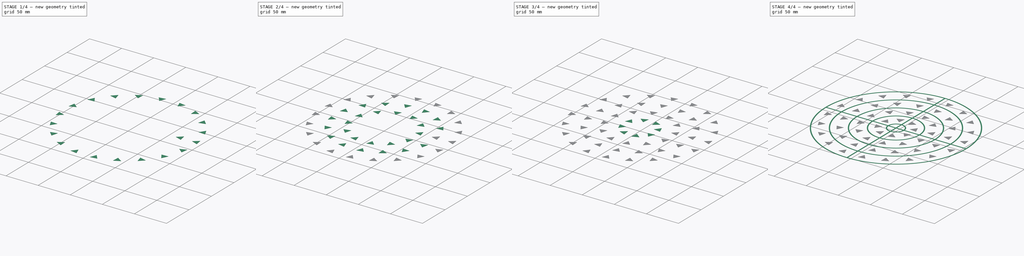
[diagram: build sequence overview — one tinted view per stage of 4, left to right]
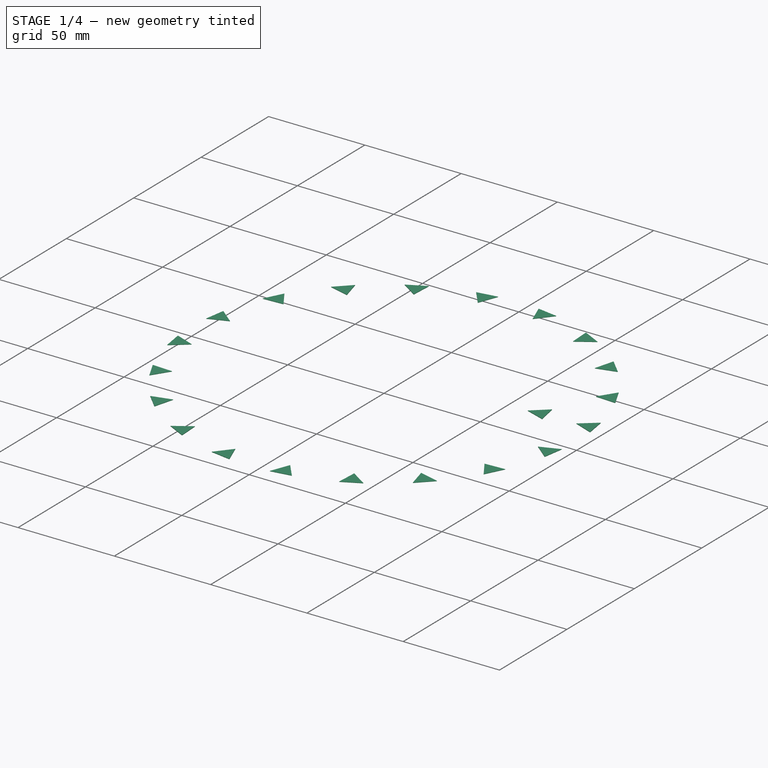
[diagram: stage 1 of 4 — iso view after this stage's code; geometry added in this stage tinted green]
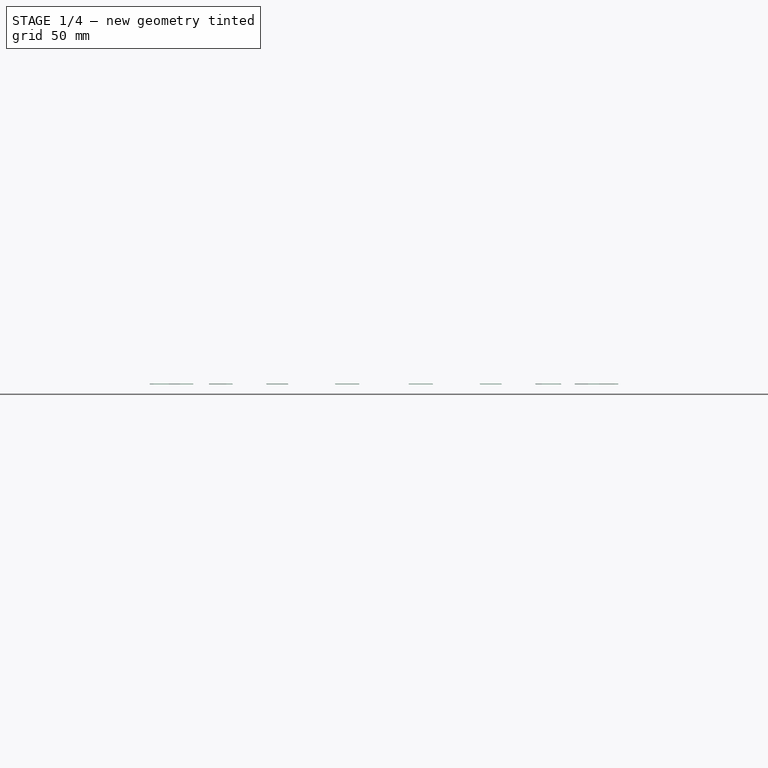
[diagram: stage 1 of 4 — front view after this stage's code; geometry added in this stage tinted green]
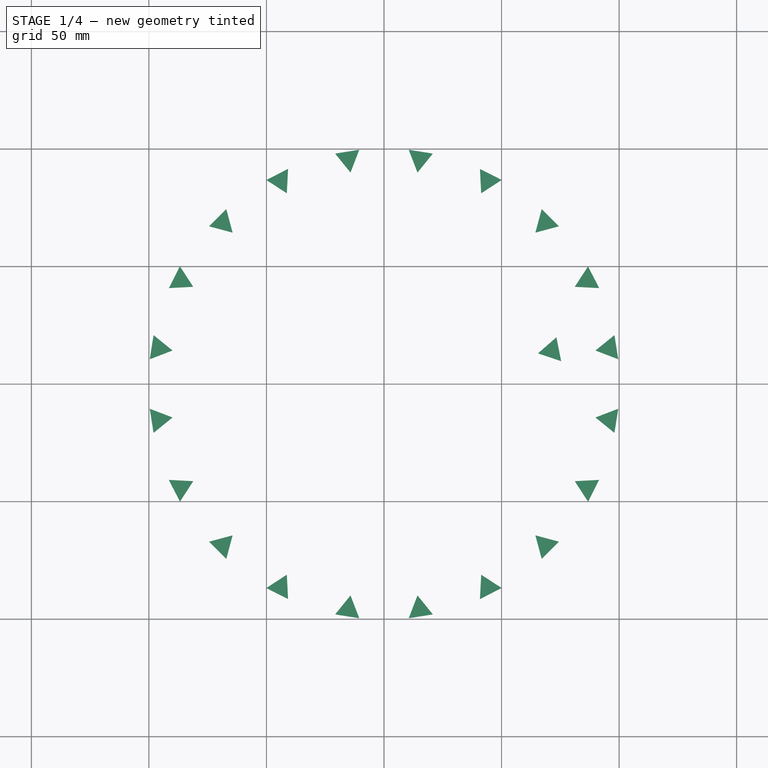
[diagram: stage 1 of 4 — top view after this stage's code; geometry added in this stage tinted green]
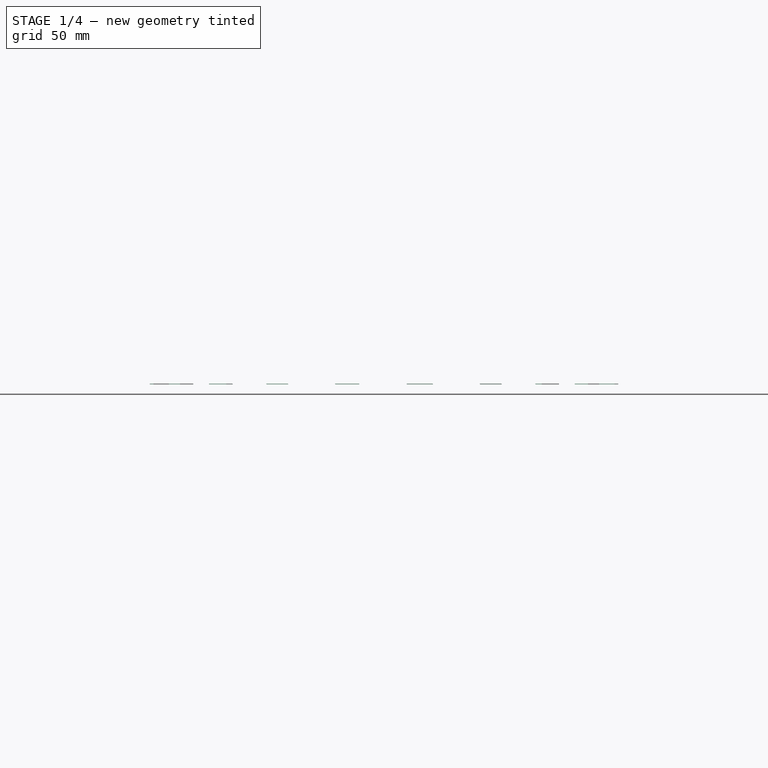
[diagram: stage 1 of 4 — right view after this stage's code; geometry added in this stage tinted green]
FCSTD DOCUMENT  (FreeCAD 0.21R33694 (Git))
Label: UltimateDeltaTestPattern
License: All rights reserved
LicenseURL: http://en.wikipedia.org/wiki/All_rights_reserved
objects: Sketcher::SketchObject×7, PartDesign::Pad×6, PartDesign::Body×5, PartDesign::ShapeBinder×4, Part::FeaturePython×4, Spreadsheet::Sheet×1, Part::Compound×1
note: 29 computed .brp shape members not serialized (recipe doc carries the construction recipe); baked Part::Feature solids carry a one-line shape summary decoded from their .brp

FEATURE [PartDesign::Body] Body002
  Group = -> [ShapeBinder001,Sketch004,Pad003]
  Origin = -> Origin002
  Tip = -> Pad003
FEATURE [PartDesign::ShapeBinder] ShapeBinder002
  Support = -> [Sketch]
  TraceSupport = false
FEATURE [Sketcher::SketchObject] Sketch005
  ExternalGeometry = -> [ShapeBinder002]
  FullyConstrained = true
  MapMode = 5
  Support = -> [XY_Plane003]
  sketch-geometry (10):
    g0: LineSegment StartX=-14.2026 StartY=71.4012 StartZ=0 EndX=14.2026 EndY=71.4012 EndZ=0
    g1: LineSegment StartX=14.2026 StartY=71.4012 StartZ=0 EndX=40.4455 EndY=60.531 EndZ=0
    g2: LineSegment StartX=40.4455 StartY=60.531 StartZ=0 EndX=60.531 EndY=40.4455 EndZ=0
    g3: LineSegment StartX=60.531 StartY=40.4455 StartZ=0 EndX=71.4012 EndY=14.2026 EndZ=0
    g4: LineSegment StartX=71.4012 StartY=14.2026 StartZ=0 EndX=71.4012 EndY=-14.2026 EndZ=0
    g5: Circle CenterX=71.4012 CenterY=14.2026 CenterZ=0 NormalX=0 NormalY=0 NormalZ=1 AngleXU=0 Radius=6
    g6: LineSegment StartX=73.3298 StartY=19.8842 StartZ=0 EndX=65.5165 EndY=13.032 EndZ=0
    g7: LineSegment StartX=65.5165 StartY=13.032 StartZ=0 EndX=75.3572 EndY=9.69154 EndZ=0
    g8: LineSegment StartX=75.3572 StartY=9.69154 StartZ=0 EndX=73.3298 EndY=19.8842 EndZ=0
    g9: LineSegment StartX=0 StartY=0 StartZ=0 EndX=71.4012 EndY=14.2026 EndZ=0
  constraints (29):
    c: Horizontal(g0)
    c: Coincident(g0,g1)
    c: Coincident(g1,g2)
    c: Coincident(g2,g3)
    c: Coincident(g3,g4)
    c: Vertical(g4)
    c: Equal(g4,g3)
    c: Equal(g3,g2)
    c: Equal(g2,g1)
    c: Equal(g1,g0)
    c: Coincident(g5,g3)
    c: PointOnObject(g0,g-3)
    c: PointOnObject(g1,g-3)
    c: PointOnObject(g2,g-3)
    c: PointOnObject(g3,g-3)
    c: PointOnObject(g4,g-3)
    c: Equal(g-4,g5)
    c: PointOnObject(g4,g-3)
    c: PointOnObject(g6,g5)
    c: PointOnObject(g6,g5)
    c: Coincident(g6,g7)
    c: PointOnObject(g7,g5)
    c: Coincident(g7,g8)
    c: Coincident(g8,g6)
    c: Equal(g7,g6)
    c: Equal(g6,g8)
    c: Coincident(g9,g-4)
    c: Coincident(g9,g3)
    c: PointOnObject(g6,g9)
FEATURE [PartDesign::Pad] Pad004
  Direction = (0,0,1)
  Length = 0.24
  Length2 = 10
  Profile = -> Sketch005
  ReferenceAxis = -> Sketch005 [N_Axis]
  Type = 0
  expr: Length = <<Spreadsheet>>.Thickness
FEATURE [PartDesign::Body] Body003
  Group = -> [ShapeBinder002,Sketch005,Pad004]
  Origin = -> Origin003
  Tip = -> Pad004
FEATURE [PartDesign::ShapeBinder] ShapeBinder003
  Support = -> [Sketch]
  TraceSupport = false
FEATURE [Sketcher::SketchObject] Sketch006
  ExternalGeometry = -> [ShapeBinder003]
  FullyConstrained = true
  MapMode = 5
  Support = -> [XY_Plane004]
  sketch-geometry (11):
    g0: LineSegment StartX=-15.1846 StartY=95.8716 StartZ=0 EndX=15.1846 EndY=95.8716 EndZ=0
    g1: LineSegment StartX=15.1846 StartY=95.8716 StartZ=0 EndX=44.0673 EndY=86.487 EndZ=0
    g2: LineSegment StartX=44.0673 StartY=86.487 StartZ=0 EndX=68.6365 EndY=68.6365 EndZ=0
    g3: LineSegment StartX=68.6365 StartY=68.6365 StartZ=0 EndX=86.487 EndY=44.0673 EndZ=0
    g4: LineSegment StartX=86.487 StartY=44.0673 StartZ=0 EndX=95.8716 EndY=15.1846 EndZ=0
    g5: LineSegment StartX=95.8716 StartY=15.1846 StartZ=0 EndX=95.8716 EndY=-15.1846 EndZ=0
    g6: Circle CenterX=95.8716 CenterY=15.1846 CenterZ=0 NormalX=0 NormalY=0 NormalZ=1 AngleXU=0 Radius=6
    g7: LineSegment StartX=0 StartY=0 StartZ=0 EndX=95.8716 EndY=15.1846 EndZ=0
    g8: LineSegment StartX=98.0218 StartY=20.7861 StartZ=0 EndX=89.9455 EndY=14.246 EndZ=0
    g9: LineSegment StartX=89.9455 StartY=14.246 StartZ=0 EndX=99.6475 EndY=10.5217 EndZ=0
    g10: LineSegment StartX=99.6475 StartY=10.5217 StartZ=0 EndX=98.0218 EndY=20.7861 EndZ=0
  constraints (32):
    c: Horizontal(g0)
    c: Coincident(g0,g1)
    c: Coincident(g1,g2)
    c: Coincident(g2,g3)
    c: Coincident(g3,g4)
    c: Coincident(g4,g5)
    c: Vertical(g5)
    c: Equal(g0,g1)
    c: Equal(g1,g2)
    c: Equal(g2,g3)
    c: Equal(g3,g4)
    c: Equal(g4,g5)
    c: Coincident(g6,g4)
    c: PointOnObject(g0,g-3)
    c: PointOnObject(g1,g-3)
    c: PointOnObject(g2,g-3)
    c: PointOnObject(g3,g-3)
    c: PointOnObject(g4,g-3)
    c: PointOnObject(g5,g-3)
    c: PointOnObject(g5,g-3)
    c: Equal(g-4,g6)
    c: Coincident(g7,g-4)
    c: Coincident(g7,g6)
    c: PointOnObject(g8,g6)
    c: PointOnObject(g8,g6)
    c: Coincident(g8,g9)
    c: PointOnObject(g9,g6)
    c: Coincident(g9,g10)
    c: Coincident(g10,g8)
    c: Equal(g8,g9)
    c: Equal(g9,g10)
    c: PointOnObject(g8,g7)
FEATURE [PartDesign::Pad] Pad005
  Direction = (0,0,1)
  Length = 0.24
  Length2 = 10
  Profile = -> Sketch006
  ReferenceAxis = -> Sketch006 [N_Axis]
  Type = 0
  expr: Length = <<Spreadsheet>>.Thickness
FEATURE [Part::FeaturePython] Array003  # Draft array (typed FeaturePython)
  AlwaysSyncPlacement = false
  Angle = 360
  ArrayType = 1
  Axis = (0,0,1)
  Base = -> Body004
  Center = (0,0,0)
  Count = 20
  ExpandArray = false
  Fuse = false
  IntervalAxis = (0,0,0)
  IntervalX = (50,0,0)
  IntervalY = (0,50,0)
  IntervalZ = (0,0,50)
  NumberCircles = 3
  NumberPolar = 20
  NumberX = 2
  NumberY = 2
  NumberZ = 1
  PlacementList = 20 placements: [(0,0,0),(0,0,0),(0,0,0),(0,0,0),(0,0,0),(0,0,0),(0,0,0),(0,0,0),(0,0,0),(0,0,0),(0,0,0),(0,0,0),(0,0,0),(0,0,0),(0,0,0),(0,0,0),(0,0,0),(0,0,0),(0,0,0),(0,0,0)]
  RadialDistance = 50
  ScaleList = (20) [(1,1,1),(1,1,1),(1,1,1),(1,1,1),(1,1,1),(1,1,1),(1,1,1),(1,1,1),(1,1,1),(1,1,1),(1,1,1),(1,1,1),(1,1,1),(1,1,1),(1,1,1),(1,1,1),(1,1,1),(1,1,1),(1,1,1),(1,1,1)]
  Symmetry = 1
  TangentialDistance = 25
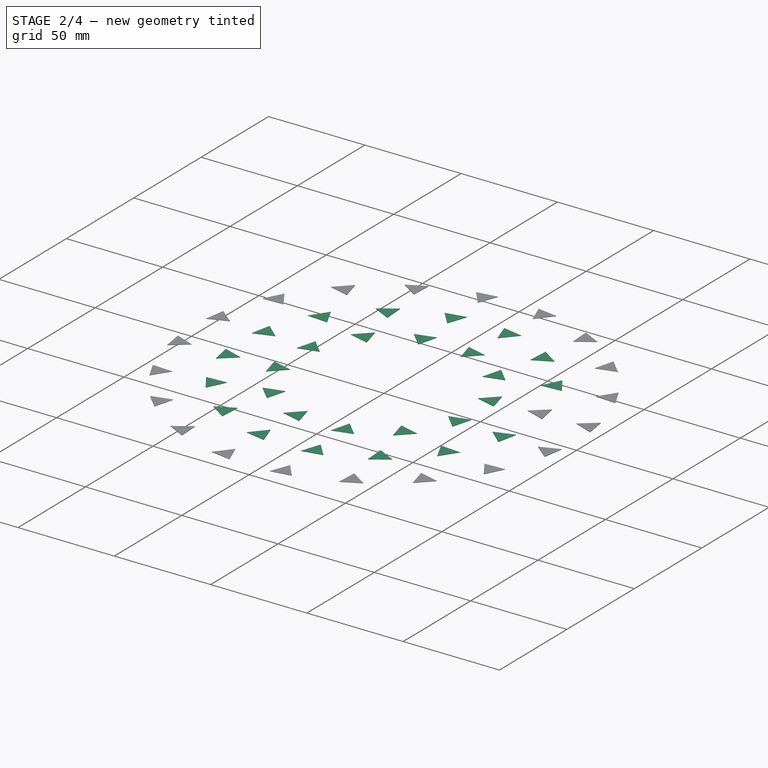
[diagram: stage 2 of 4 — iso view after this stage's code; geometry added in this stage tinted green]
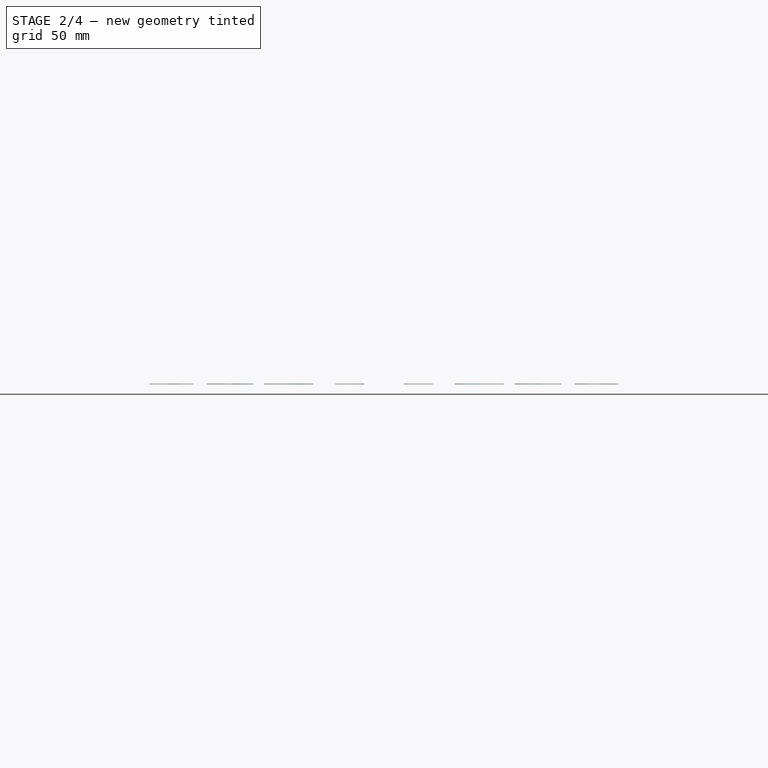
[diagram: stage 2 of 4 — front view after this stage's code; geometry added in this stage tinted green]
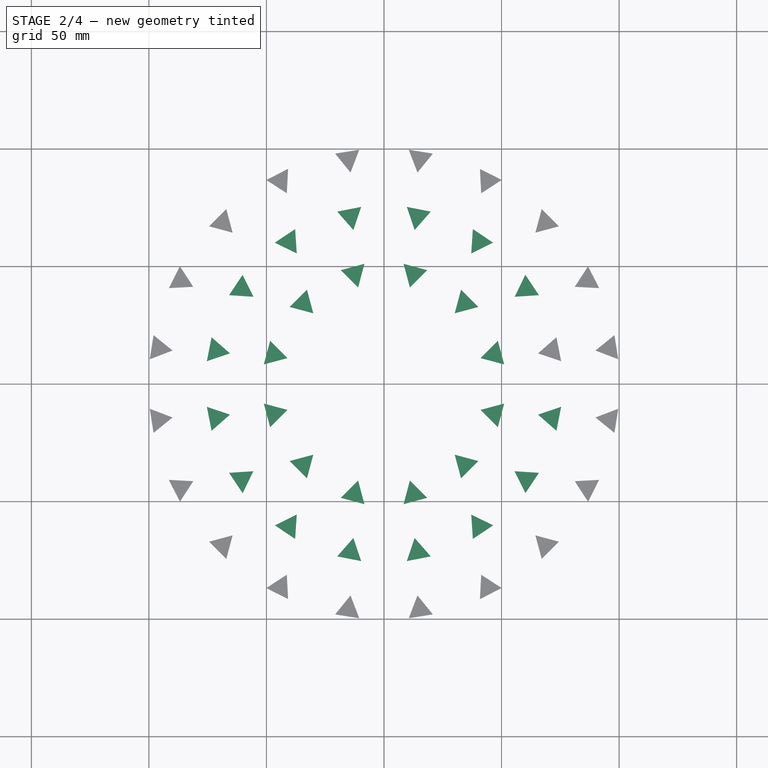
[diagram: stage 2 of 4 — top view after this stage's code; geometry added in this stage tinted green]
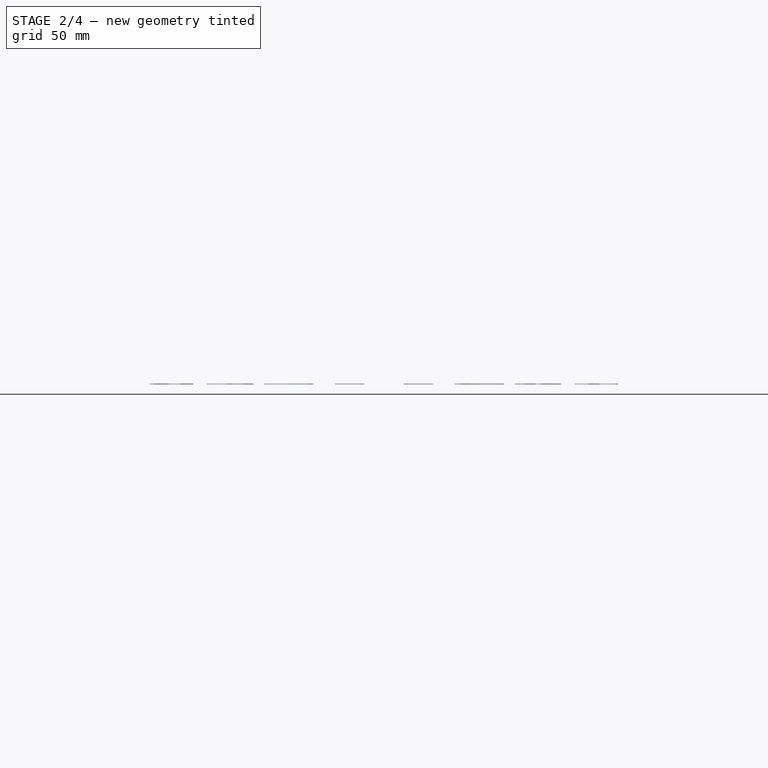
[diagram: stage 2 of 4 — right view after this stage's code; geometry added in this stage tinted green]
FEATURE [PartDesign::Body] Body
  Group = -> [Sketch,Sketch001,Pad,Sketch002,Pad001]
  Origin = -> Origin
  Tip = -> Pad001
FEATURE [PartDesign::ShapeBinder] ShapeBinder001
  Support = -> [Sketch]
  TraceSupport = false
FEATURE [Sketcher::SketchObject] Sketch004
  ExternalGeometry = -> [ShapeBinder001]
  FullyConstrained = true
  MapMode = 5
  Support = -> [XY_Plane002]
  sketch-geometry (9):
    g0: LineSegment StartX=-12.5614 StartY=46.8796 StartZ=0 EndX=12.5614 EndY=46.8796 EndZ=0
    g1: LineSegment StartX=12.5614 StartY=46.8796 StartZ=0 EndX=34.3182 EndY=34.3182 EndZ=0
    g2: LineSegment StartX=34.3182 StartY=34.3182 StartZ=0 EndX=46.8796 EndY=12.5614 EndZ=0
    g3: LineSegment StartX=46.8796 StartY=12.5614 StartZ=0 EndX=46.8796 EndY=-12.5614 EndZ=0
    g4: Circle CenterX=46.8796 CenterY=12.5614 CenterZ=0 NormalX=0 NormalY=0 NormalZ=1 AngleXU=0 Radius=6
    g5: LineSegment StartX=0 StartY=0 StartZ=0 EndX=46.8796 EndY=12.5614 EndZ=0
    g6: LineSegment StartX=48.4325 StartY=18.3569 StartZ=0 EndX=41.084 EndY=11.0084 EndZ=0
    g7: LineSegment StartX=41.084 StartY=11.0084 StartZ=0 EndX=51.1222 EndY=8.31871 EndZ=0
    g8: LineSegment StartX=51.1222 StartY=8.31871 StartZ=0 EndX=48.4325 EndY=18.3569 EndZ=0
  constraints (26):
    c: Horizontal(g0)
    c: Coincident(g1,g0)
    c: Coincident(g2,g1)
    c: Coincident(g3,g2)
    c: Vertical(g3)
    c: Equal(g3,g2)
    c: Equal(g2,g1)
    c: Equal(g1,g0)
    c: Coincident(g4,g2)
    c: PointOnObject(g0,g-3)
    c: PointOnObject(g0,g-3)
    c: PointOnObject(g1,g-3)
    c: PointOnObject(g4,g-3)
    c: PointOnObject(g3,g-3)
    c: Equal(g-4,g4)
    c: Coincident(g5,g-4)
    c: Coincident(g5,g2)
    c: PointOnObject(g6,g4)
    c: PointOnObject(g6,g4)
    c: Coincident(g6,g7)
    c: PointOnObject(g7,g4)
    c: Coincident(g7,g8)
    c: Coincident(g8,g6)
    c: Equal(g6,g8)
    c: Equal(g8,g7)
    c: PointOnObject(g6,g5)
FEATURE [PartDesign::Pad] Pad003
  Direction = (0,0,1)
  Length = 0.24
  Length2 = 10
  Profile = -> Sketch004
  ReferenceAxis = -> Sketch004 [N_Axis]
  Type = 0
  expr: Length = <<Spreadsheet>>.Thickness
FEATURE [Part::FeaturePython] Array001  # Draft array (typed FeaturePython)
  AlwaysSyncPlacement = false
  Angle = 360
  ArrayType = 1
  Axis = (0,0,1)
  Base = -> Body002
  Center = (0,0,0)
  Count = 12
  ExpandArray = false
  Fuse = false
  IntervalAxis = (0,0,0)
  IntervalX = (50,0,0)
  IntervalY = (0,50,0)
  IntervalZ = (0,0,50)
  NumberCircles = 3
  NumberPolar = 12
  NumberX = 2
  NumberY = 2
  NumberZ = 1
  PlacementList = 12 placements: [(0,0,0),(0,0,0),(0,0,0),(0,0,0),(0,0,0),(0,0,0),(0,0,0),(0,0,0),(0,0,0),(0,0,0),(0,0,0),(0,0,0)]
  RadialDistance = 50
  ScaleList = (12) [(1,1,1),(1,1,1),(1,1,1),(1,1,1),(1,1,1),(1,1,1),(1,1,1),(1,1,1),(1,1,1),(1,1,1),(1,1,1),(1,1,1)]
  Symmetry = 1
  TangentialDistance = 25
FEATURE [Part::FeaturePython] Array002  # Draft array (typed FeaturePython)
  AlwaysSyncPlacement = false
  Angle = 360
  ArrayType = 1
  Axis = (0,0,1)
  Base = -> Body003
  Center = (0,0,0)
  Count = 16
  ExpandArray = false
  Fuse = false
  IntervalAxis = (0,0,0)
  IntervalX = (50,0,0)
  IntervalY = (0,50,0)
  IntervalZ = (0,0,50)
  NumberCircles = 3
  NumberPolar = 16
  NumberX = 2
  NumberY = 2
  NumberZ = 1
  PlacementList = 16 placements: [(0,0,0),(0,0,0),(0,0,0),(0,0,0),(0,0,0),(0,0,0),(0,0,0),(0,0,0),(0,0,0),(0,0,0),(0,0,0),(0,0,0),(0,0,0),(0,0,0),(0,0,0),(0,0,0)]
  RadialDistance = 50
  ScaleList = (16) [(1,1,1),(1,1,1),(1,1,1),(1,1,1),(1,1,1),(1,1,1),(1,1,1),(1,1,1),(1,1,1),(1,1,1),(1,1,1),(1,1,1),(1,1,1),(1,1,1),(1,1,1),(1,1,1)]
  Symmetry = 1
  TangentialDistance = 25
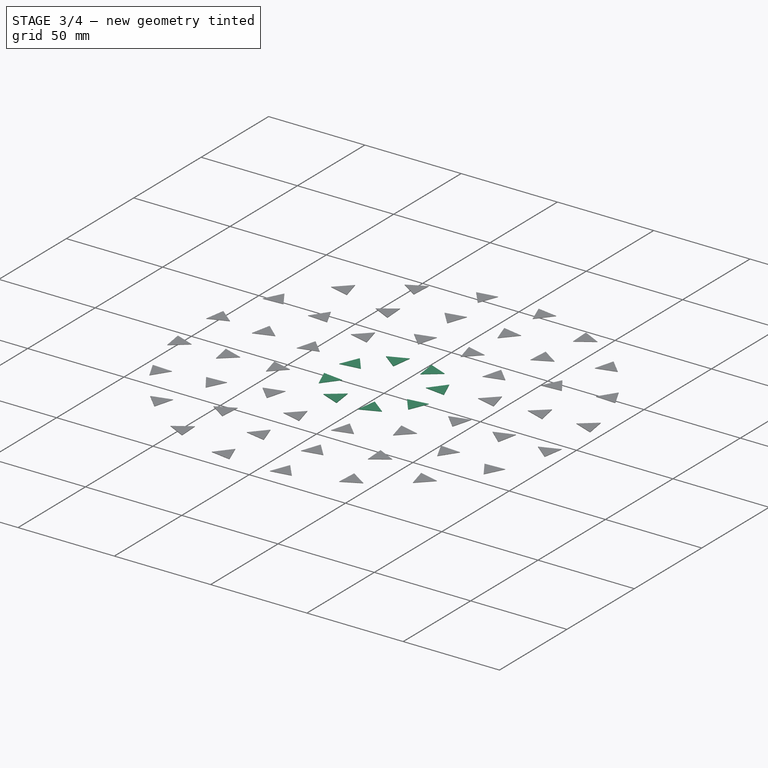
[diagram: stage 3 of 4 — iso view after this stage's code; geometry added in this stage tinted green]
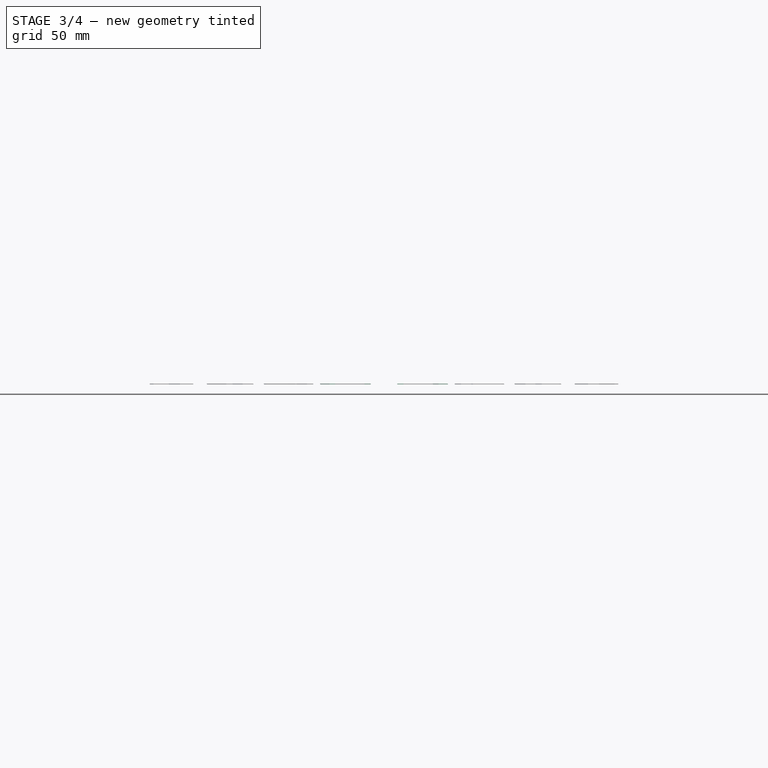
[diagram: stage 3 of 4 — front view after this stage's code; geometry added in this stage tinted green]
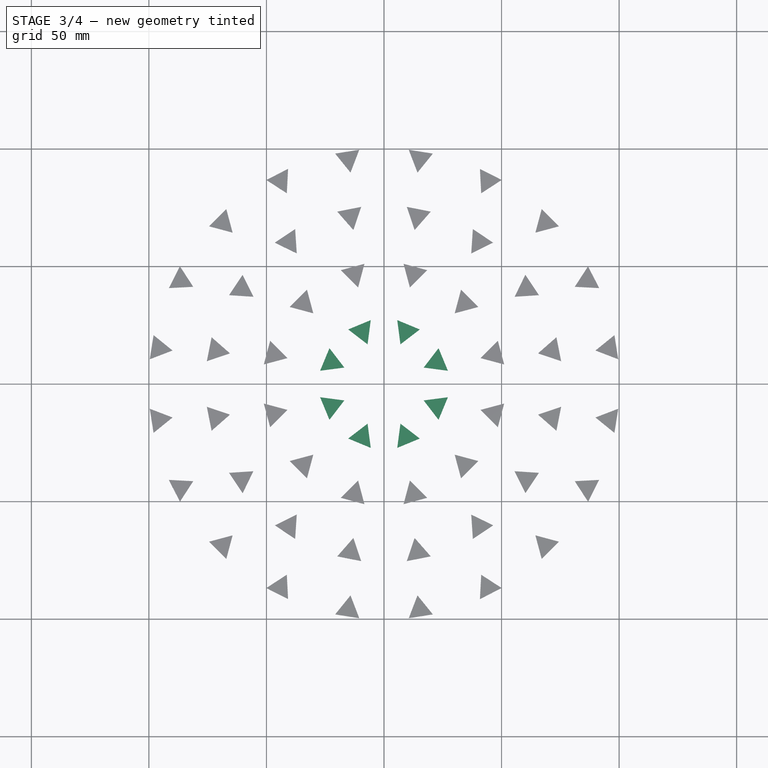
[diagram: stage 3 of 4 — top view after this stage's code; geometry added in this stage tinted green]
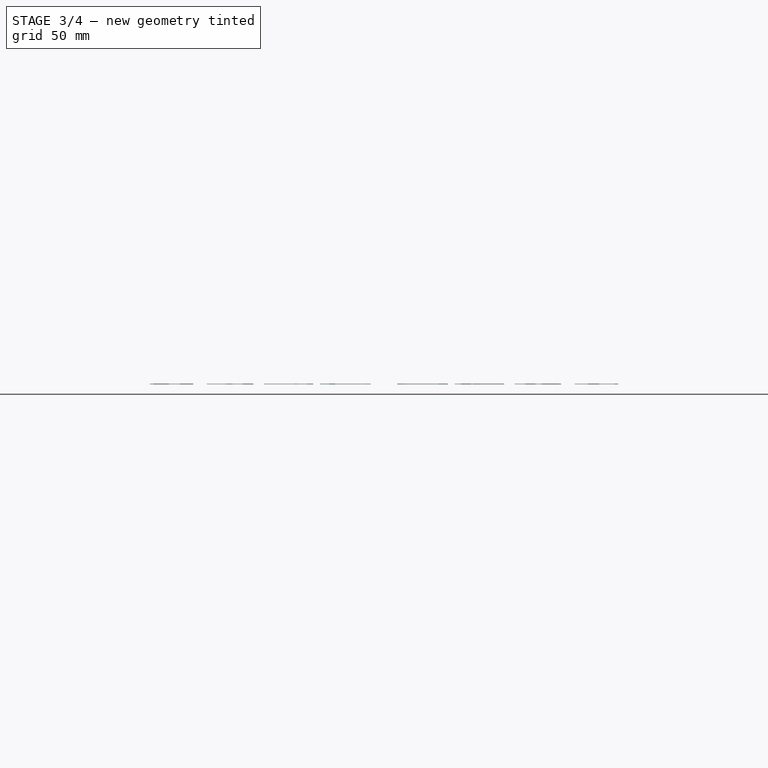
[diagram: stage 3 of 4 — right view after this stage's code; geometry added in this stage tinted green]
FEATURE [PartDesign::Body] Body004
  Group = -> [ShapeBinder003,Sketch006,Pad005]
  Origin = -> Origin004
  Tip = -> Pad005
FEATURE [PartDesign::ShapeBinder] ShapeBinder
  Support = -> [Sketch]
  TraceSupport = false
FEATURE [Sketcher::SketchObject] Sketch003
  ExternalGeometry = -> [ShapeBinder]
  FullyConstrained = true
  MapMode = 5
  Support = -> [XY_Plane001]
  sketch-geometry (8):
    g0: LineSegment StartX=-9.28645 StartY=22.4195 StartZ=0 EndX=9.28645 EndY=22.4195 EndZ=0
    g1: LineSegment StartX=9.28645 StartY=22.4195 StartZ=0 EndX=22.4195 EndY=9.28645 EndZ=0
    g2: LineSegment StartX=22.4195 StartY=9.28645 StartZ=0 EndX=22.4195 EndY=-9.28645 EndZ=0
    g3: Circle CenterX=22.4195 CenterY=9.28645 CenterZ=0 NormalX=0 NormalY=0 NormalZ=1 AngleXU=0 Radius=6
    g4: LineSegment StartX=27.1796 StartY=5.63388 StartZ=0 EndX=23.2026 EndY=15.2351 EndZ=0
    g5: LineSegment StartX=23.2026 StartY=15.2351 StartZ=0 EndX=16.8762 EndY=6.99035 EndZ=0
    g6: LineSegment StartX=16.8762 StartY=6.99035 StartZ=0 EndX=27.1796 EndY=5.63388 EndZ=0
    g7: LineSegment StartX=0 StartY=0 StartZ=0 EndX=22.4195 EndY=9.28645 EndZ=0
  constraints (23):
    c: Horizontal(g0)
    c: Coincident(g1,g0)
    c: Coincident(g2,g1)
    c: Vertical(g2)
    c: Equal(g2,g1)
    c: Equal(g1,g0)
    c: Coincident(g3,g1)
    c: PointOnObject(g0,g-3)
    c: PointOnObject(g0,g-3)
    c: PointOnObject(g3,g-3)
    c: PointOnObject(g2,g-3)
    c: Equal(g3,g-4)
    c: PointOnObject(g4,g3)
    c: PointOnObject(g4,g3)
    c: Coincident(g4,g5)
    c: PointOnObject(g5,g3)
    c: Coincident(g5,g6)
    c: Coincident(g6,g4)
    c: Equal(g4,g6)
    c: Equal(g6,g5)
    c: Coincident(g7,g-4)
    c: Coincident(g7,g1)
    c: PointOnObject(g5,g7)
FEATURE [PartDesign::Pad] Pad002
  Direction = (0,0,1)
  Length = 0.24
  Length2 = 10
  Profile = -> Sketch003
  ReferenceAxis = -> Sketch003 [N_Axis]
  Type = 0
  expr: Length = <<Spreadsheet>>.Thickness
FEATURE [PartDesign::Body] Body001
  Group = -> [ShapeBinder,Sketch003,Pad002]
  Origin = -> Origin001
  Tip = -> Pad002
FEATURE [Part::FeaturePython] Array  # Draft array (typed FeaturePython)
  AlwaysSyncPlacement = false
  Angle = 360
  ArrayType = 1
  Axis = (0,0,1)
  Base = -> Body001
  Center = (0,0,0)
  Count = 8
  ExpandArray = false
  Fuse = false
  IntervalAxis = (0,0,0)
  IntervalX = (50,0,0)
  IntervalY = (0,50,0)
  IntervalZ = (0,0,50)
  NumberCircles = 3
  NumberPolar = 8
  NumberX = 2
  NumberY = 2
  NumberZ = 1
  PlacementList = 8 placements: [(0,0,0),(0,0,0),(0,0,0),(0,0,0),(0,0,0),(0,0,0),(0,0,0),(0,0,0)]
  RadialDistance = 50
  ScaleList = (8) [(1,1,1),(1,1,1),(1,1,1),(1,1,1),(1,1,1),(1,1,1),(1,1,1),(1,1,1)]
  Symmetry = 1
  TangentialDistance = 25
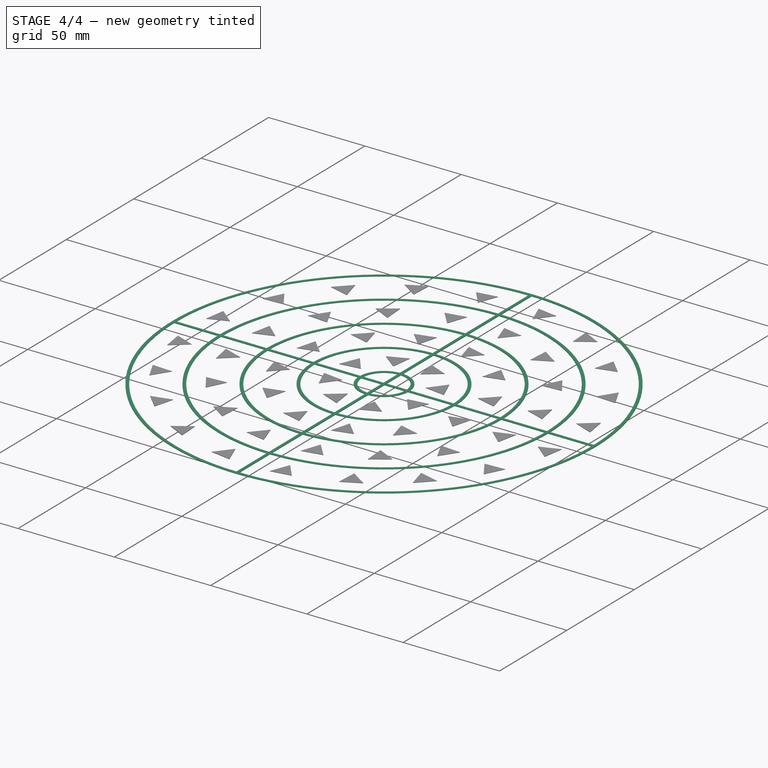
[diagram: stage 4 of 4 — iso view after this stage's code; geometry added in this stage tinted green]
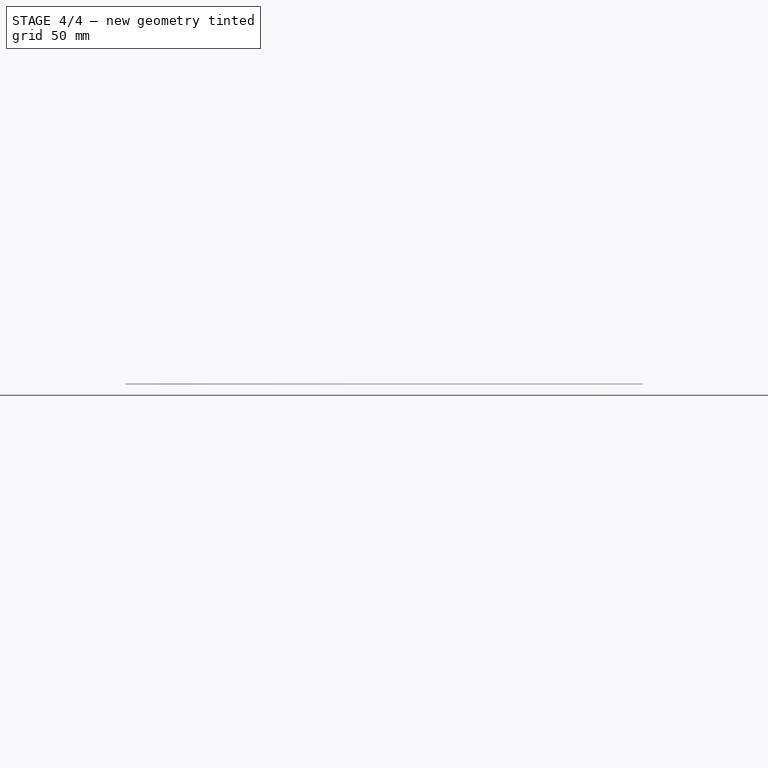
[diagram: stage 4 of 4 — front view after this stage's code; geometry added in this stage tinted green]
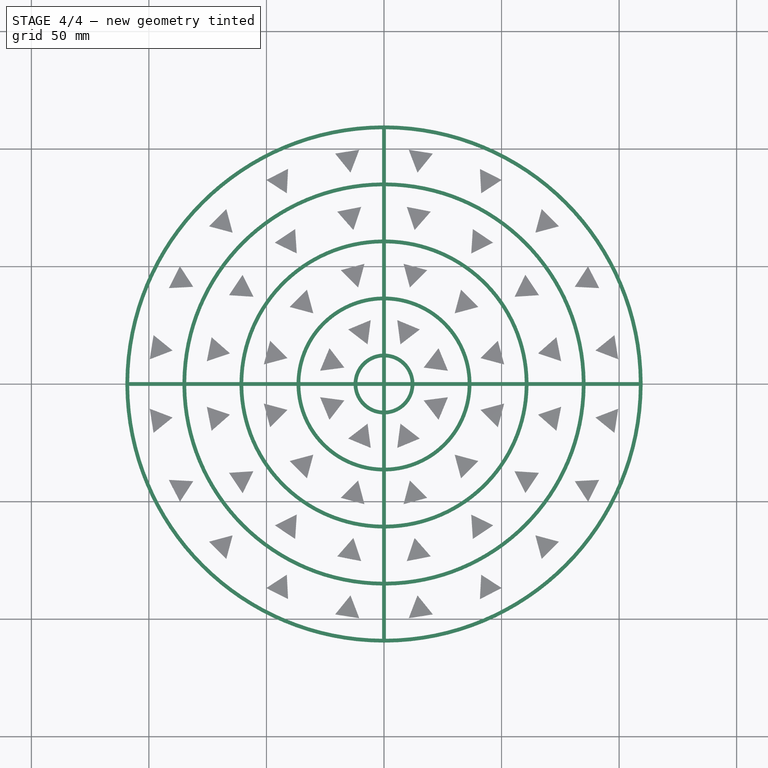
[diagram: stage 4 of 4 — top view after this stage's code; geometry added in this stage tinted green]
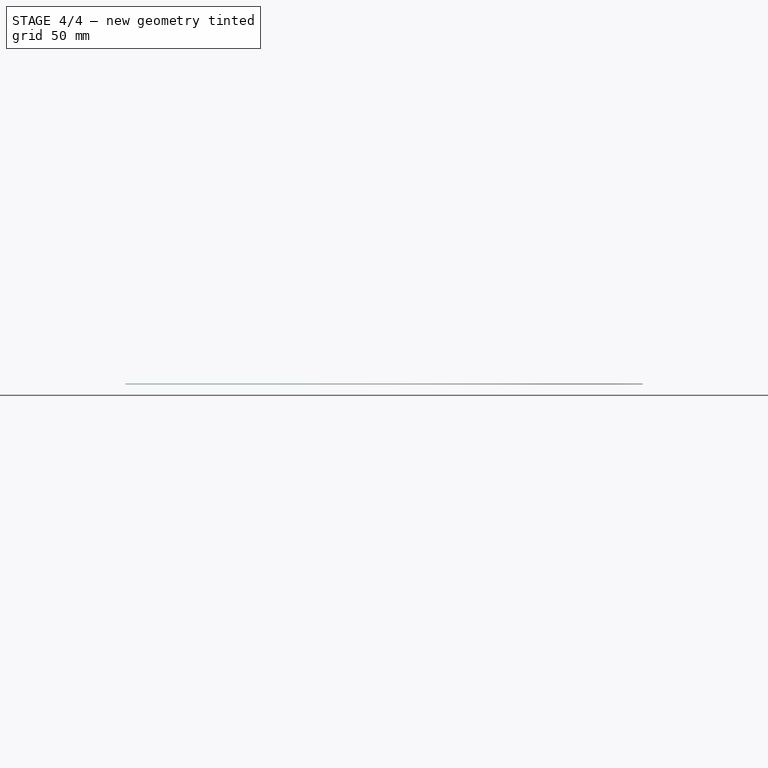
[diagram: stage 4 of 4 — right view after this stage's code; geometry added in this stage tinted green]
FEATURE [Spreadsheet::Sheet] Spreadsheet
  cells = B2='Thickness; C2(Thickness)==0.24 mm; B3='OuterDiameter; C3(OuterDiameter)==220 mm; B4='ParchRadius; C4(ParchRadius)==6 mm; B5='RingCount; C5(RingCount)=5; B6='RingWidth; C6(RingWidth)==1.6 mm; B7='Gap; C7(Gap)==2 mm
FEATURE [Sketcher::SketchObject] Sketch  label="Template"
  FullyConstrained = true
  MapMode = 5
  Support = -> [XY_Plane]
  expr: Constraints[36] = <<Spreadsheet>>.RingWidth
  expr: Constraints[4] = <<Spreadsheet>>.ParchRadius
  expr: Constraints[80] = <<Spreadsheet>>.OuterDiameter
  sketch-geometry (42):
    g0: Circle CenterX=0 CenterY=0 CenterZ=0 NormalX=0 NormalY=0 NormalZ=1 AngleXU=0 Radius=110
    g1: Circle CenterX=0 CenterY=0 CenterZ=0 NormalX=0 NormalY=0 NormalZ=1 AngleXU=0 Radius=108.4
    g2: Circle CenterX=0 CenterY=0 CenterZ=0 NormalX=0 NormalY=0 NormalZ=1 AngleXU=0 Radius=6
    g3: Circle CenterX=0 CenterY=0 CenterZ=0 NormalX=0 NormalY=0 NormalZ=1 AngleXU=0 Radius=85.7333
    g4: Circle CenterX=0 CenterY=0 CenterZ=0 NormalX=0 NormalY=0 NormalZ=1 AngleXU=0 Radius=84.1333
    g5: Circle CenterX=0 CenterY=0 CenterZ=0 NormalX=0 NormalY=0 NormalZ=1 AngleXU=0 Radius=61.4667
    g6: Circle CenterX=0 CenterY=0 CenterZ=0 NormalX=0 NormalY=0 NormalZ=1 AngleXU=0 Radius=59.8667
    g7: Circle CenterX=0 CenterY=0 CenterZ=0 NormalX=0 NormalY=0 NormalZ=1 AngleXU=0 Radius=37.2
    g8: Circle CenterX=0 CenterY=0 CenterZ=0 NormalX=0 NormalY=0 NormalZ=1 AngleXU=0 Radius=35.6
    g9: Circle CenterX=0 CenterY=0 CenterZ=0 NormalX=0 NormalY=0 NormalZ=1 AngleXU=0 Radius=12.9333
    g10: Circle CenterX=0 CenterY=0 CenterZ=0 NormalX=0 NormalY=0 NormalZ=1 AngleXU=0 Radius=11.3333
    g11: LineSegment StartX=0 StartY=12.9333 StartZ=0 EndX=0 EndY=11.3333 EndZ=0
    g12: LineSegment StartX=11.3333 StartY=0 StartZ=0 EndX=12.9333 EndY=0 EndZ=0
    g13: LineSegment StartX=35.6 StartY=0 StartZ=0 EndX=37.2 EndY=0 EndZ=0
    g14: LineSegment StartX=59.8667 StartY=0 StartZ=0 EndX=61.4667 EndY=0 EndZ=0
    g15: LineSegment StartX=84.1333 StartY=0 StartZ=0 EndX=85.7333 EndY=0 EndZ=0
    g16: LineSegment StartX=108.4 StartY=0 StartZ=0 EndX=110 EndY=0 EndZ=0
    g17: LineSegment StartX=-0.8 StartY=109.997 StartZ=0 EndX=-0.8 EndY=0.8 EndZ=0
    g18: LineSegment StartX=-0.8 StartY=0.8 StartZ=0 EndX=-109.997 EndY=0.8 EndZ=0
    g19: LineSegment StartX=0.8 StartY=0.8 StartZ=0 EndX=0.8 EndY=109.997 EndZ=0
    g20: LineSegment StartX=109.997 StartY=0.8 StartZ=0 EndX=0.8 EndY=0.8 EndZ=0
    g21: LineSegment StartX=0.8 StartY=0.8 StartZ=0 EndX=-0.8 EndY=0.8 EndZ=0
    g22: LineSegment StartX=0.8 StartY=-0.8 StartZ=0 EndX=109.997 EndY=-0.8 EndZ=0
    g23: LineSegment StartX=0.8 StartY=-109.997 StartZ=0 EndX=0.8 EndY=-0.8 EndZ=0
    g24: LineSegment StartX=0.8 StartY=-0.8 StartZ=0 EndX=0.8 EndY=0.8 EndZ=0
    g25: LineSegment StartX=-0.8 StartY=0.8 StartZ=0 EndX=-0.8 EndY=-0.8 EndZ=0
    g26: LineSegment StartX=-0.8 StartY=-0.8 StartZ=0 EndX=-0.8 EndY=-109.997 EndZ=0
    g27: LineSegment StartX=-109.997 StartY=-0.8 StartZ=0 EndX=-0.8 EndY=-0.8 EndZ=0
    g28: LineSegment StartX=-0.8 StartY=-0.8 StartZ=0 EndX=0.8 EndY=-0.8 EndZ=0
    g29: Circle CenterX=0 CenterY=0 CenterZ=0 NormalX=0 NormalY=0 NormalZ=1 AngleXU=0 Radius=24.2667
    g30: Circle CenterX=0 CenterY=0 CenterZ=0 NormalX=0 NormalY=0 NormalZ=1 AngleXU=0 Radius=48.5333
    g31: Circle CenterX=0 CenterY=0 CenterZ=0 NormalX=0 NormalY=0 NormalZ=1 AngleXU=0 Radius=72.8
    g32: Circle CenterX=0 CenterY=0 CenterZ=0 NormalX=0 NormalY=0 NormalZ=1 AngleXU=0 Radius=97.0667
    g33: LineSegment StartX=12.9333 StartY=0 StartZ=0 EndX=24.2667 EndY=0 EndZ=0
    g34: LineSegment StartX=24.2667 StartY=0 StartZ=0 EndX=35.6 EndY=0 EndZ=0
    g35: LineSegment StartX=37.2 StartY=0 StartZ=0 EndX=48.5333 EndY=0 EndZ=0
    g36: LineSegment StartX=48.5333 StartY=0 StartZ=0 EndX=59.8667 EndY=0 EndZ=0
    g37: LineSegment StartX=61.4667 StartY=0 StartZ=0 EndX=72.8 EndY=0 EndZ=0
    g38: LineSegment StartX=72.8 StartY=0 StartZ=0 EndX=84.1333 EndY=0 EndZ=0
    g39: LineSegment StartX=85.7333 StartY=0 StartZ=0 EndX=97.0667 EndY=0 EndZ=0
    g40: LineSegment StartX=97.0667 StartY=0 StartZ=0 EndX=108.4 EndY=0 EndZ=0
    g41: LineSegment StartX=0 StartY=0 StartZ=0 EndX=11.3333 EndY=0 EndZ=0
  constraints (116):
    c: Coincident(g0,g-1)
    c: Radius(g0) = 110
    c: Coincident(g1,g0)
    c: Coincident(g2,g0)
    c: Radius(g2) = 6
    c: Coincident(g3,g0)
    c: Coincident(g4,g0)
    c: Coincident(g5,g0)
    c: Coincident(g6,g0)
    c: Coincident(g7,g0)
    c: Coincident(g8,g0)
    c: Coincident(g9,g0)
    c: Coincident(g10,g0)
    c: PointOnObject(g11,g9)
    c: PointOnObject(g11,g10)
    c: Vertical(g11)
    c: PointOnObject(g0,g11)
    c: PointOnObject(g12,g9)
    c: PointOnObject(g12,g10)
    c: Horizontal(g12)
    c: PointOnObject(g13,g8)
    c: PointOnObject(g13,g7)
    c: Horizontal(g13)
    c: PointOnObject(g14,g6)
    c: PointOnObject(g14,g5)
    c: Horizontal(g14)
    c: PointOnObject(g15,g4)
    c: PointOnObject(g15,g3)
    c: Horizontal(g15)
    c: PointOnObject(g16,g1)
    c: PointOnObject(g16,g0)
    c: Horizontal(g16)
    c: Equal(g12,g13)
    c: Equal(g13,g14)
    c: Equal(g14,g15)
    c: Equal(g15,g16)
    c: DistanceX(g16,g16) = 1.6
    c: Radius(g3) = 85.7333
    c: Radius(g5) = 61.4667
    c: Radius(g7) = 37.2
    c: Radius(g9) = 12.9333
    c: PointOnObject(g17,g0)
    c: PointOnObject(g26,g0)
    c: PointOnObject(g23,g0)
    c: PointOnObject(g19,g0)
    c: PointOnObject(g20,g0)
    c: PointOnObject(g18,g0)
    c: PointOnObject(g27,g0)
    c: PointOnObject(g22,g0)
    c: Coincident(g17,g25)
    c: Vertical(g17)
    c: Coincident(g21,g18)
    c: Horizontal(g18)
    c: Coincident(g24,g19)
    c: Vertical(g19)
    c: Coincident(g20,g21)
    c: Horizontal(g20)
    c: Horizontal(g21)
    c: Coincident(g28,g22)
    c: Horizontal(g22)
    c: Coincident(g23,g24)
    c: Vertical(g23)
    c: Vertical(g24)
    c: Coincident(g25,g26)
    c: Vertical(g25)
    c: Vertical(g26)
    c: Coincident(g27,g28)
    c: Horizontal(g27)
    c: Horizontal(g28)
    c: Coincident(g22,g23)
    c: Coincident(g17,g18)
    c: Coincident(g19,g20)
    c: Coincident(g25,g27)
    c: Equal(g28,g25)
    c: Equal(g28,g12)
    c: Symmetric(g25,g19,g0)
    c: Coincident(g29,g0)
    c: Coincident(g30,g0)
    c: Coincident(g31,g0)
    c: Coincident(g32,g0)
    c: Diameter(g0) = 220
    c: Coincident(g33,g12)
    c: Coincident(g34,g13)
    c: Coincident(g35,g13)
    c: Coincident(g36,g14)
    c: Coincident(g37,g14)
    c: Coincident(g38,g15)
    c: Coincident(g39,g15)
    c: Coincident(g40,g16)
    c: Coincident(g33,g34)
    c: Horizontal(g33)
    c: Horizontal(g34)
    c: Coincident(g35,g36)
    c: Horizontal(g35)
    c: Horizontal(g36)
    c: Coincident(g37,g38)
    c: Horizontal(g37)
    c: Horizontal(g38)
    c: Coincident(g39,g40)
    c: Horizontal(g39)
    c: Horizontal(g40)
    c: PointOnObject(g39,g32)
    c: PointOnObject(g37,g31)
    c: PointOnObject(g35,g30)
    c: PointOnObject(g33,g29)
    c: Coincident(g41,g0)
    c: Coincident(g41,g12)
    c: Horizontal(g41)
    c: Equal(g33,g34)
    c: Equal(g34,g35)
    c: Equal(g35,g36)
    c: Equal(g36,g37)
    c: Equal(g37,g38)
    c: Equal(g38,g39)
    c: Equal(g39,g40)
    c: Equal(g40,g41)
FEATURE [Sketcher::SketchObject] Sketch001
  ExternalGeometry = -> [Sketch]
  FullyConstrained = true
  MapMode = 5
  Support = -> [XY_Plane]
  sketch-geometry (12):
    g0: LineSegment StartX=0.8 StartY=0.8 StartZ=0 EndX=0.8 EndY=109.997 EndZ=0
    g1: LineSegment StartX=0.8 StartY=109.997 StartZ=0 EndX=-0.8 EndY=109.997 EndZ=0
    g2: LineSegment StartX=-0.8 StartY=109.997 StartZ=0 EndX=-0.8 EndY=0.8 EndZ=0
    g3: LineSegment StartX=-0.8 StartY=0.8 StartZ=0 EndX=-109.997 EndY=0.8 EndZ=0
    g4: LineSegment StartX=-109.997 StartY=0.8 StartZ=0 EndX=-109.997 EndY=-0.8 EndZ=0
    g5: LineSegment StartX=-109.997 StartY=-0.8 StartZ=0 EndX=-0.8 EndY=-0.8 EndZ=0
    g6: LineSegment StartX=-0.8 StartY=-0.8 StartZ=0 EndX=-0.8 EndY=-109.997 EndZ=0
    g7: LineSegment StartX=-0.8 StartY=-109.997 StartZ=0 EndX=0.8 EndY=-109.997 EndZ=0
    g8: LineSegment StartX=0.8 StartY=-109.997 StartZ=0 EndX=0.8 EndY=-0.8 EndZ=0
    g9: LineSegment StartX=0.8 StartY=-0.8 StartZ=0 EndX=109.997 EndY=-0.8 EndZ=0
    g10: LineSegment StartX=109.997 StartY=-0.8 StartZ=0 EndX=109.997 EndY=0.8 EndZ=0
    g11: LineSegment StartX=109.997 StartY=0.8 StartZ=0 EndX=0.8 EndY=0.8 EndZ=0
  constraints (24):
    c: Coincident(g-5,g0)
    c: Coincident(g0,g-4)
    c: Coincident(g0,g1)
    c: Coincident(g1,g-3)
    c: Coincident(g1,g2)
    c: Coincident(g2,g-10)
    c: Coincident(g2,g3)
    c: Coincident(g3,g-10)
    c: Coincident(g3,g4)
    c: Coincident(g4,g-9)
    c: Coincident(g4,g5)
    c: Coincident(g5,g-9)
    c: Coincident(g5,g6)
    c: Coincident(g6,g-8)
    c: Coincident(g6,g7)
    c: Coincident(g7,g-7)
    c: Coincident(g7,g8)
    c: Coincident(g8,g-7)
    c: Coincident(g8,g9)
    c: Coincident(g9,g-6)
    c: Coincident(g9,g10)
    c: Coincident(g10,g-5)
    c: Coincident(g10,g11)
    c: Coincident(g11,g0)
FEATURE [PartDesign::Pad] Pad
  Direction = (0,0,1)
  Length = 0.24
  Length2 = 10
  Profile = -> Sketch001
  ReferenceAxis = -> Sketch001 [N_Axis]
  Type = 0
  expr: Length = <<Spreadsheet>>.Thickness
FEATURE [Sketcher::SketchObject] Sketch002
  ExternalGeometry = -> [Sketch]
  FullyConstrained = true
  MapMode = 5
  Support = -> [XY_Plane]
  sketch-geometry (10):
    g0: Circle CenterX=0 CenterY=0 CenterZ=0 NormalX=0 NormalY=0 NormalZ=1 AngleXU=0 Radius=11.3333
    g1: Circle CenterX=0 CenterY=0 CenterZ=0 NormalX=0 NormalY=0 NormalZ=1 AngleXU=0 Radius=12.9333
    g2: Circle CenterX=0 CenterY=0 CenterZ=0 NormalX=0 NormalY=0 NormalZ=1 AngleXU=0 Radius=35.6
    g3: Circle CenterX=0 CenterY=0 CenterZ=0 NormalX=0 NormalY=0 NormalZ=1 AngleXU=0 Radius=37.2
    g4: Circle CenterX=0 CenterY=0 CenterZ=0 NormalX=0 NormalY=0 NormalZ=1 AngleXU=0 Radius=59.8667
    g5: Circle CenterX=0 CenterY=0 CenterZ=0 NormalX=0 NormalY=0 NormalZ=1 AngleXU=0 Radius=61.4667
    g6: Circle CenterX=0 CenterY=0 CenterZ=0 NormalX=0 NormalY=0 NormalZ=1 AngleXU=0 Radius=84.1333
    g7: Circle CenterX=0 CenterY=0 CenterZ=0 NormalX=0 NormalY=0 NormalZ=1 AngleXU=0 Radius=85.7333
    g8: Circle CenterX=0 CenterY=0 CenterZ=0 NormalX=0 NormalY=0 NormalZ=1 AngleXU=0 Radius=108.4
    g9: Circle CenterX=0 CenterY=0 CenterZ=0 NormalX=0 NormalY=0 NormalZ=1 AngleXU=0 Radius=110
  constraints (20):
    c: Coincident(g1,g0)
    c: Coincident(g2,g0)
    c: Coincident(g3,g0)
    c: Coincident(g4,g0)
    c: Coincident(g5,g0)
    c: Coincident(g6,g0)
    c: Coincident(g7,g0)
    c: Coincident(g8,g0)
    c: Coincident(g9,g0)
    c: Coincident(g0,g-12)
    c: Equal(g-11,g8)
    c: Equal(g-12,g9)
    c: Equal(g-10,g7)
    c: Equal(g-9,g6)
    c: Equal(g-8,g5)
    c: Equal(g-7,g4)
    c: Equal(g-6,g3)
    c: Equal(g-5,g2)
    c: Equal(g-4,g1)
    c: Equal(g-3,g0)
FEATURE [PartDesign::Pad] Pad001
  BaseFeature = -> Pad
  Direction = (0,0,1)
  Length = 0.24
  Length2 = 10
  Profile = -> Sketch002
  ReferenceAxis = -> Sketch002 [N_Axis]
  Refine = true
  Type = 0
  expr: Length = <<Spreadsheet>>.Thickness
FEATURE [Part::Compound] Compound
  Links = -> [Body,Array,Array001,Array002,Array003]
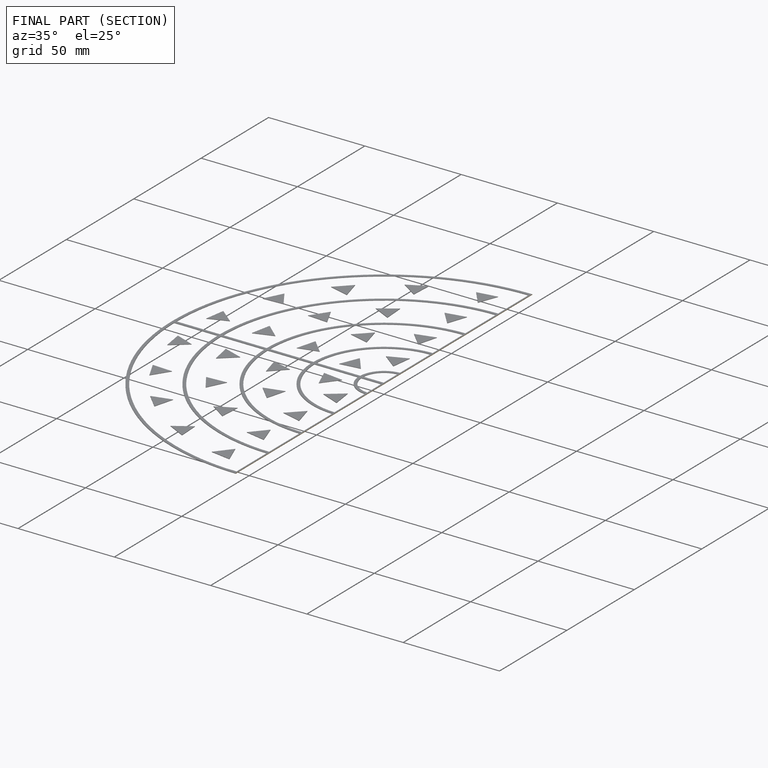
[diagram: finished part — half-section view (interior)]
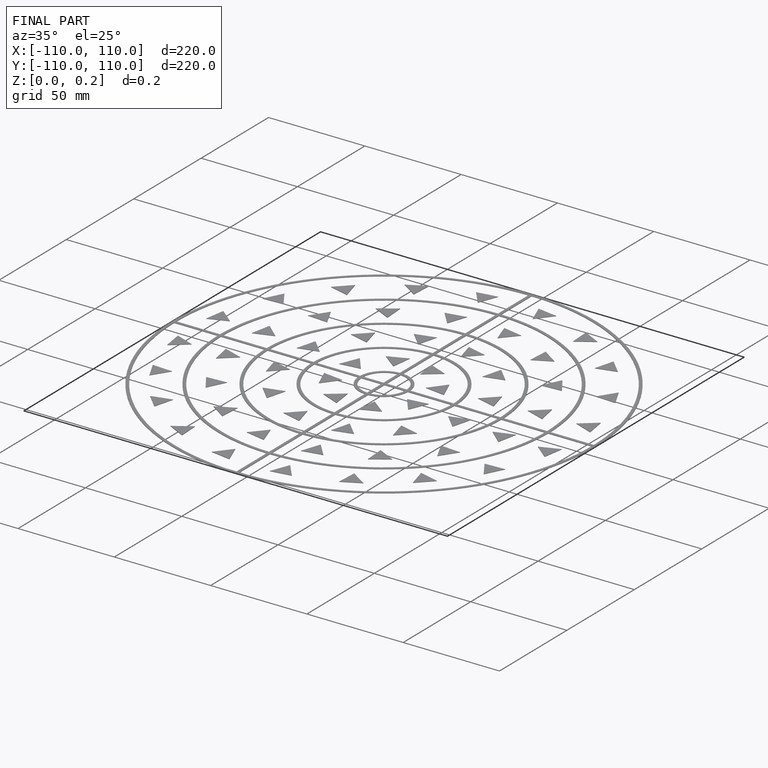
[diagram: finished part — iso view with bounding-box wireframe]
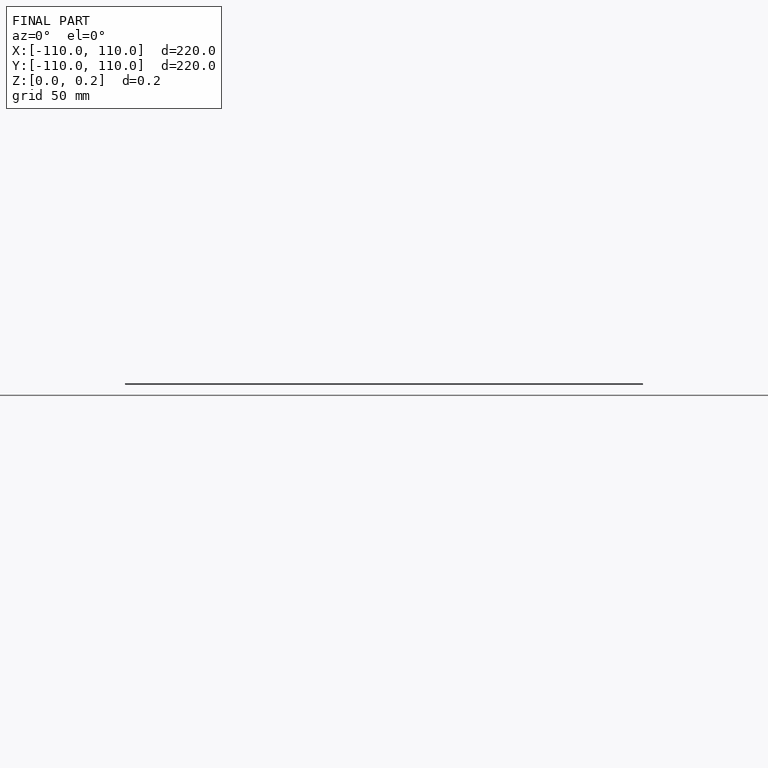
[diagram: finished part — front view with bounding-box wireframe]
